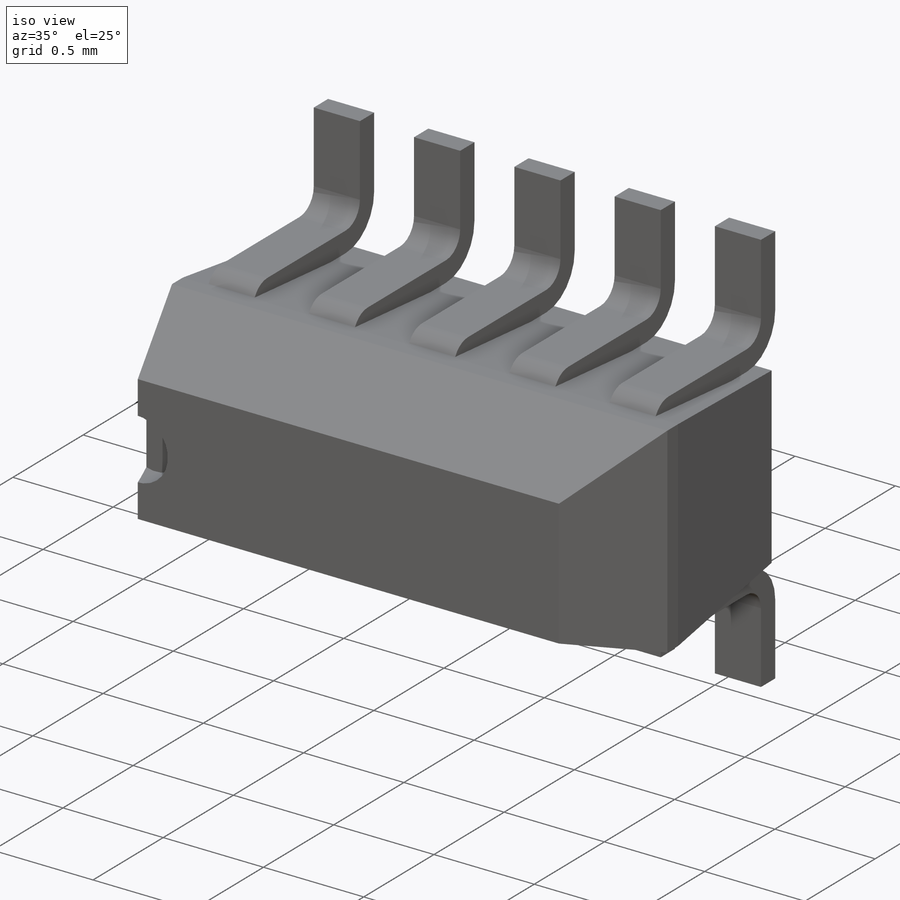
[diagram: iso view]
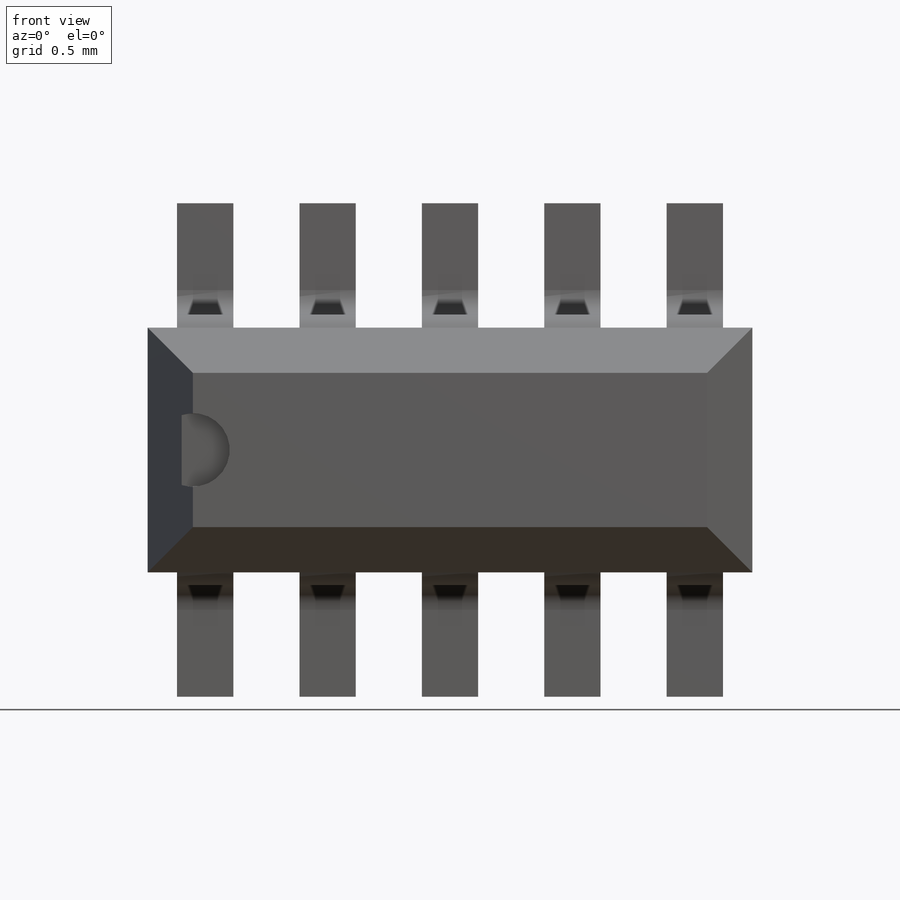
[diagram: front view]
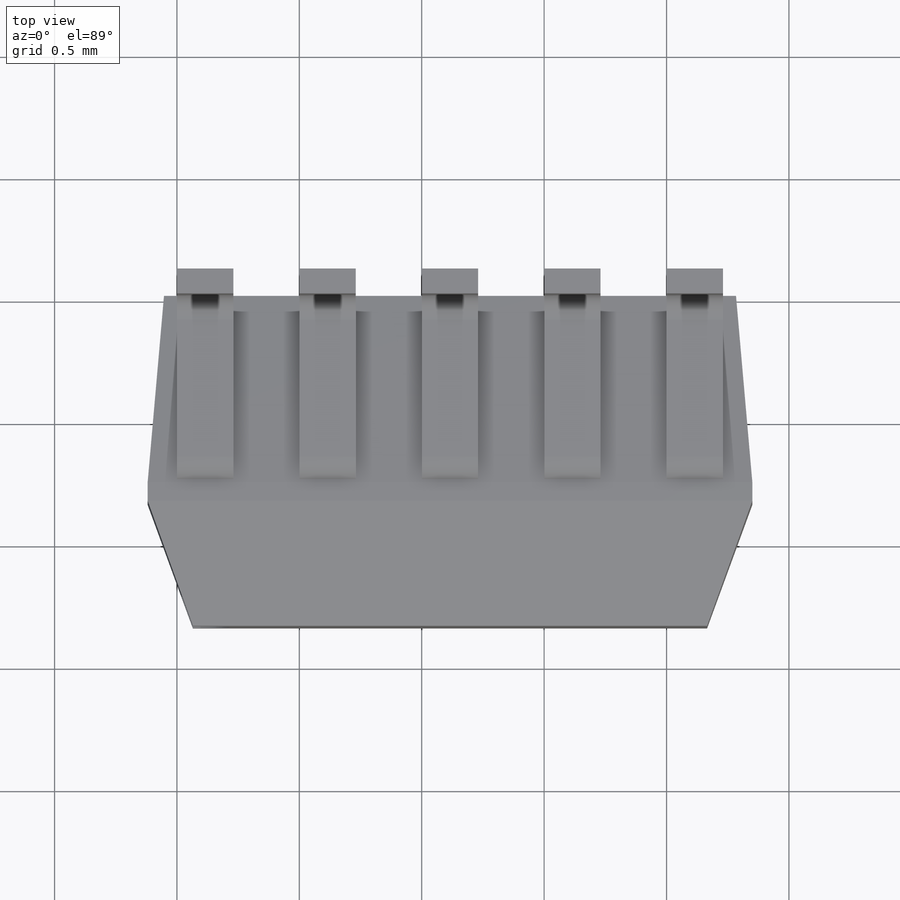
[diagram: top view]
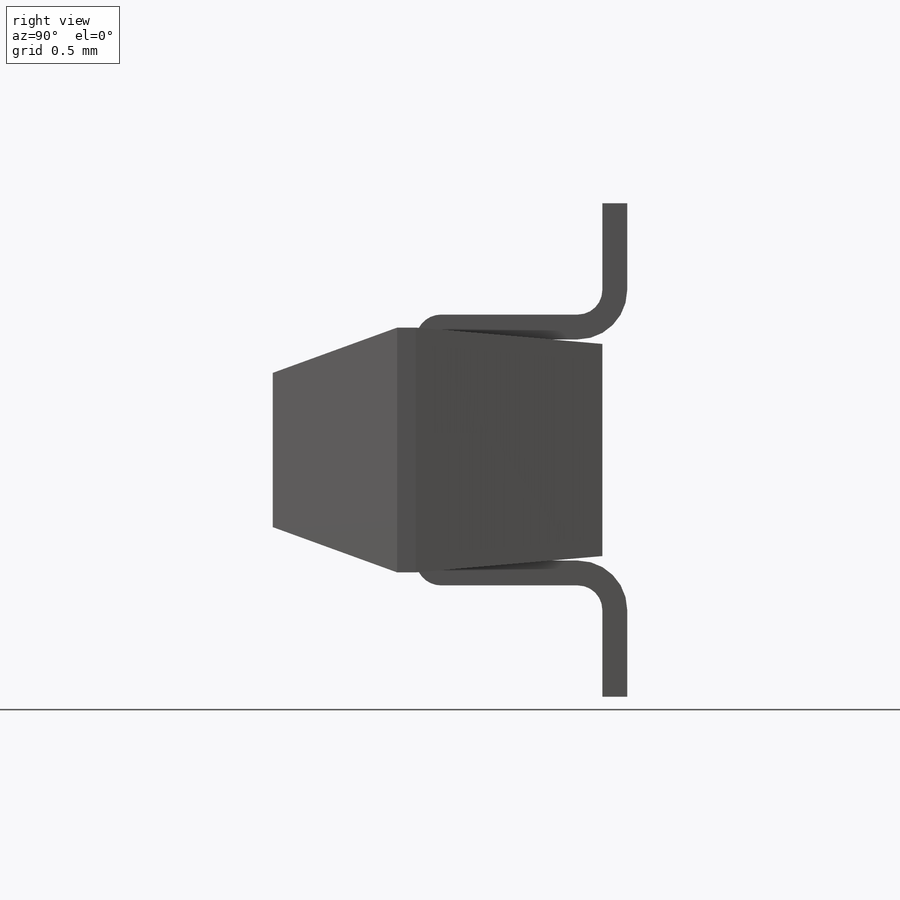
[diagram: right view]
SOLIDWORKS PART (.sldprt)
format: sldprt  version: not decoded by parser v0  size: 281,600 bytes
history: native  units: mm
features: plane x9, extrude x7, sketch x3, chamfer x2, material x1, cut_extrude x1, pattern_linear x1, mirror x1 (+9 scaffold rows collapsed)
feature tree (34):
  scaffold x9  (default folders/planes/origin — collapsed)
  material  "Material <not specified>"
  plane  "x/y"
  plane  "x/z"
  plane  "y/z"
  sketch  "Sketch1"  dims[c1.D1=3.81mm c1.D2=4.826mm c2.D1=1.0mm c2.D2=2.47mm]
  extrude  "Base-Extrude"  Depth=0mm PW2_UID_val=0mm
  plane  "Plane1"
  plane  "Plane2"
  plane  "Plane3"
  plane  "Plane4"
  chamfer  "Chamfer1"  [1 undecoded]
  extrude  "pw2 (2)"  Depth=0mm PW2_UID_val=0mm
  chamfer  "Chamfer2"  [1 undecoded]
  extrude  "pw2 (3)"  Depth=0mm PW2_UID_val=0mm
  sketch  "Sketch3"  dims[D2=0.3mm D1=2.1mm]
  cut_extrude  "Cut-Extrude1"  [1 undecoded]
  extrude  "pw2 (4)"  Depth=0mm PW2_UID_val=0mm
  plane  "Plane5"  Offset=0.235mm
  sketch  "Sketch4"  dims[c1.D4=0.12mm c1.D7=0.12mm c1.D1=0.381mm c1.D2=0.381mm c2.D1=0.4mm c2.D2=0.1mm c2.D3=~0.508309mm c3.D1=0.3mm c3.D2=0.5mm c3.D3=0.15mm c3.D5=0.2mm c3.D6=0.6032mm c3.D7=0.5088mm c4.D1=0.1mm c4.D2=0.1mm c4.D3=0.45mm]
  extrude  "pw2 (5)"  Depth=0mm PW2_UID_val=0mm
  pattern_linear  "LPattern1"  [2 undecoded]
  extrude  "pw2 (6)"  Depth=0mm PW2_UID_val=0mm
  plane  "Plane6"  Offset=0.5mm
  mirror  "Mirror1"
  extrude  "pw2 (7)"  Depth=0mm PW2_UID_val=0mm
decode coverage: 10 of 15 modeling features carry decoded parameters
note: ~ marks probable driven/reference dimensions
note: 5 parameter values undecoded
summary: no parameter record found for 3 features
note: suppression state not decoded; provenance and decode notes live in map.json
